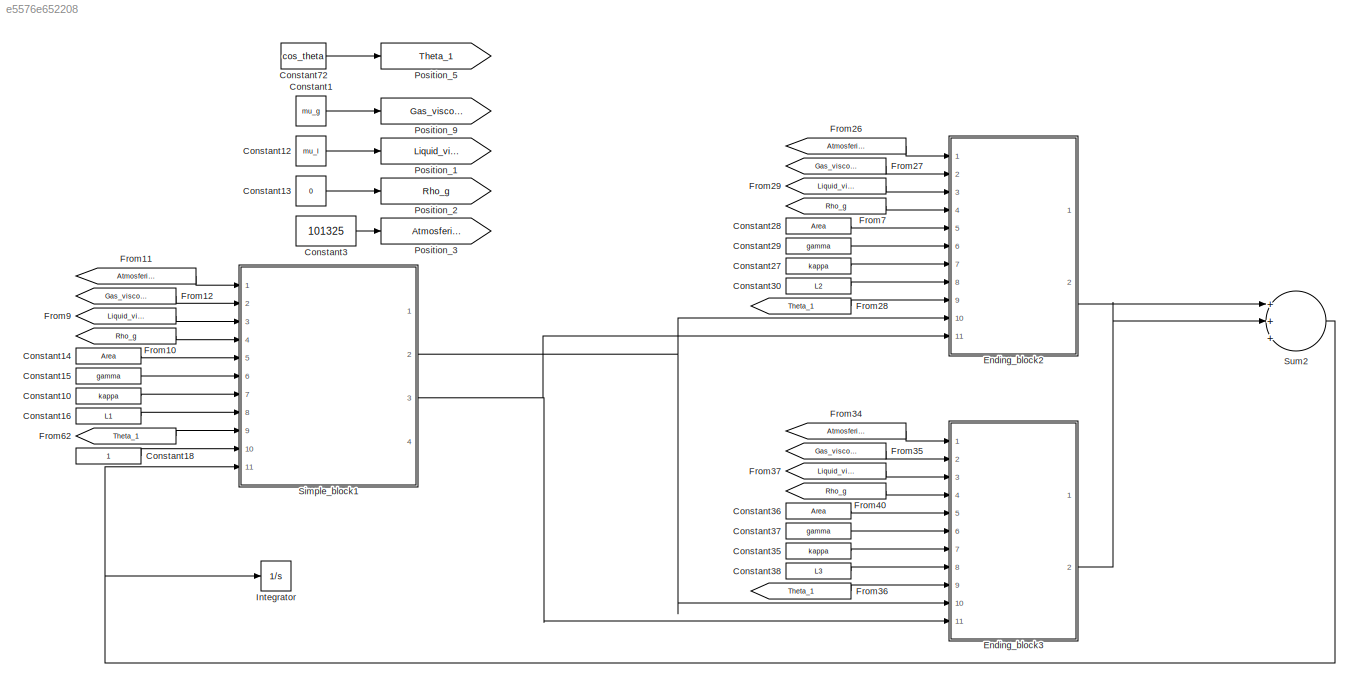
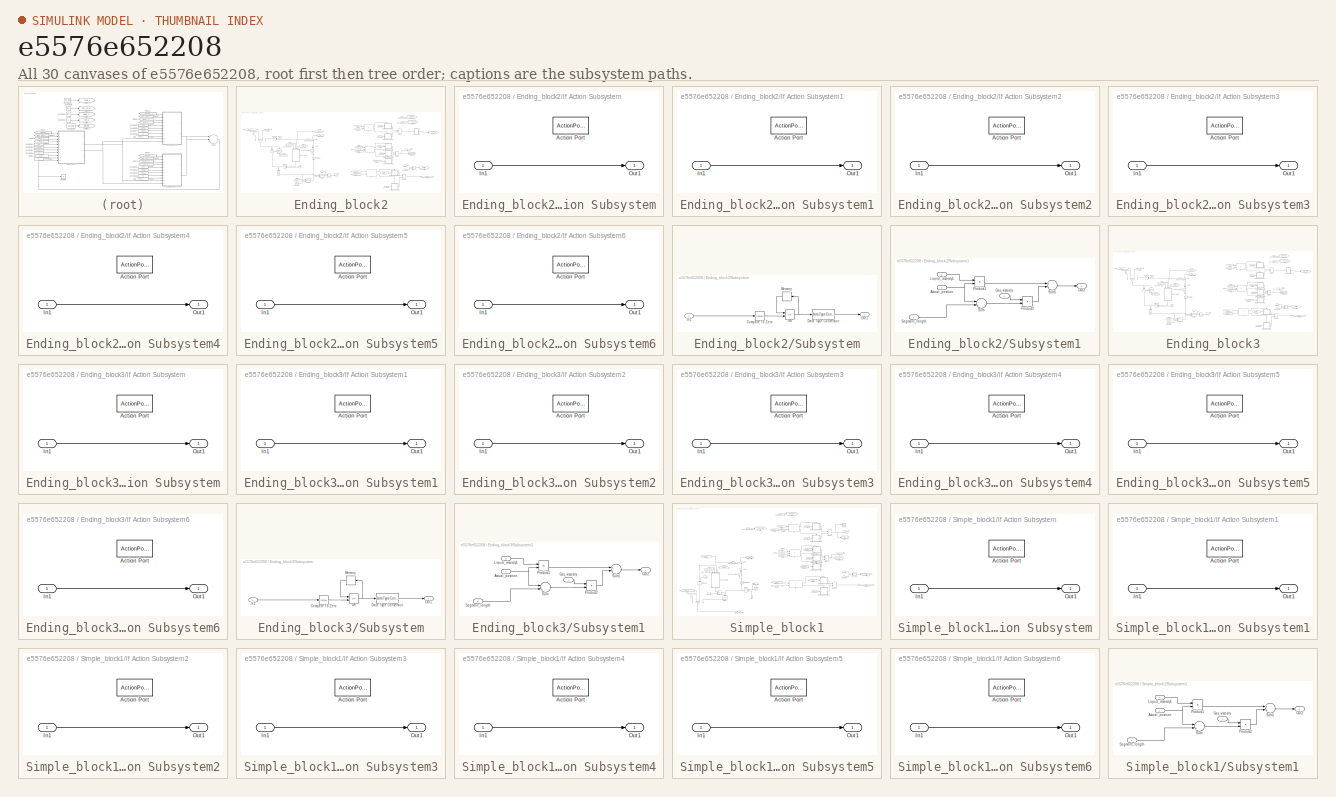
[diagram: thumbnail index - all 30 canvases of the model, root first then tree order]
MODEL slx_e5576e652208
KIND model
CONFIG AbsTol = auto
CONFIG EnableMultiTasking = off
CONFIG FixedStep = auto
CONFIG MaxStep = 0.005
CONFIG MinStep = auto
CONFIG RelTol = 1e-3
CONFIG SampleTimeConstraint = Unconstrained
CONFIG Solver = VariableStepAuto
CONFIG SolverName = VariableStepAuto
CONFIG StartTime = 0.0
CONFIG StopTime = 35
BLOCK [Constant] Constant1
  Value = mu_g
BLOCK [Constant] Constant10
  Value = kappa
BLOCK [Constant] Constant12
  Value = mu_l
BLOCK [Constant] Constant13
  Value = 0
BLOCK [Constant] Constant14
  Value = Area
BLOCK [Constant] Constant15
  Value = gamma
BLOCK [Constant] Constant16
  Value = L1
BLOCK [Constant] Constant18
BLOCK [Constant] Constant27
  Value = kappa
BLOCK [Constant] Constant28
  Value = Area
BLOCK [Constant] Constant29
  Value = gamma
BLOCK [Constant] Constant3
  Value = 101325
BLOCK [Constant] Constant30
  Value = L2
  VectorParams1D = off
BLOCK [Constant] Constant35
  Value = kappa
BLOCK [Constant] Constant36
  Value = Area
BLOCK [Constant] Constant37
  Value = gamma
BLOCK [Constant] Constant38
  Value = L3
BLOCK [Constant] Constant72
  Value = cos_theta
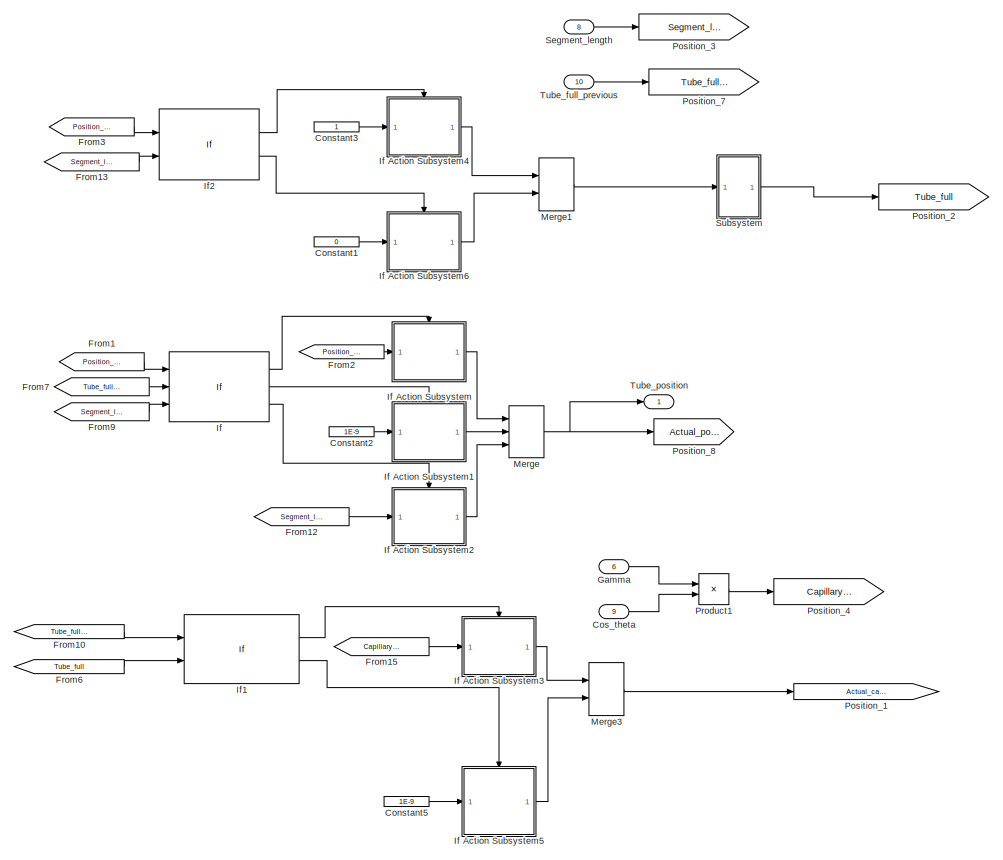
[diagram: Ending_block2 - part 1/2, right side, full height]
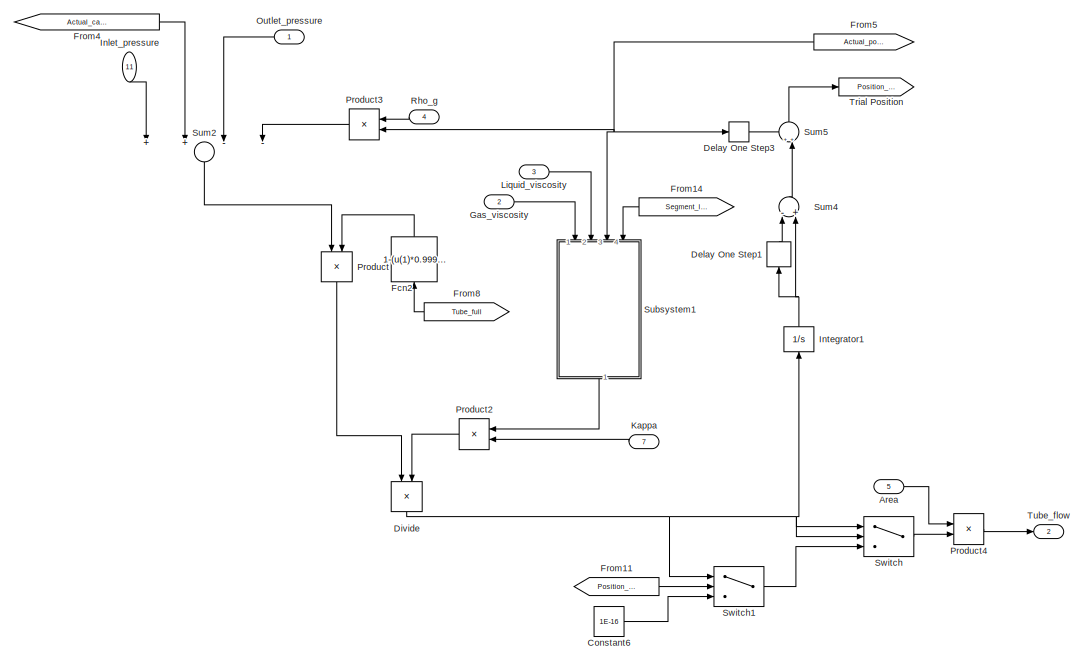
[diagram: Ending_block2 - part 2/2, left side, full height]
BLOCK [SubSystem] Ending_block2
  Ports = [11, 2]
  RequestExecContextInheritance = off
BLOCK [Inport] Ending_block2/Area
  IconDisplay = Port number
  Port = 5
BLOCK [Constant] Ending_block2/Constant1
  Value = 0
BLOCK [Constant] Ending_block2/Constant2
  Value = 1E-9
BLOCK [Constant] Ending_block2/Constant3
BLOCK [Constant] Ending_block2/Constant5
  Value = 1E-9
BLOCK [Constant] Ending_block2/Constant6
  Value = 1E-16
BLOCK [Inport] Ending_block2/Cos_theta
  IconDisplay = Port number
  Port = 9
BLOCK [Delay] Ending_block2/Delay One Step1
  DelayLength = 1
  InputPortMap = u0
  Ports = [1, 1]
BLOCK [Delay] Ending_block2/Delay One Step3
  DelayLength = 1
  InputPortMap = u0
  Ports = [1, 1]
BLOCK [Product] Ending_block2/Divide
  InputSameDT = off
  Inputs = */
  OutDataTypeStr = Inherit: Inherit via internal rule
  Ports = [2, 1]
  RndMeth = Floor
  SaturateOnIntegerOverflow = off
BLOCK [Fcn] Ending_block2/Fcn2
  Expr = 1-(u(1)*0.99999)
BLOCK [From] Ending_block2/From1
  GotoTag = Position_trial
BLOCK [From] Ending_block2/From10
  GotoTag = Tube_full_previous
BLOCK [From] Ending_block2/From11
  GotoTag = Position_trial
BLOCK [From] Ending_block2/From12
  GotoTag = Segment_length
BLOCK [From] Ending_block2/From13
  GotoTag = Segment_length
BLOCK [From] Ending_block2/From14
  GotoTag = Segment_length
BLOCK [From] Ending_block2/From15
  GotoTag = Capillary_pressure
BLOCK [From] Ending_block2/From2
  GotoTag = Position_trial
BLOCK [From] Ending_block2/From3
  GotoTag = Position_trial
BLOCK [From] Ending_block2/From4
  GotoTag = Actual_capillary_pressure
BLOCK [From] Ending_block2/From5
  GotoTag = Actual_position
BLOCK [From] Ending_block2/From6
  GotoTag = Tube_full
BLOCK [From] Ending_block2/From7
  GotoTag = Tube_full_previous
BLOCK [From] Ending_block2/From8
  GotoTag = Tube_full
BLOCK [From] Ending_block2/From9
  GotoTag = Segment_length
BLOCK [Inport] Ending_block2/Gamma
  IconDisplay = Port number
  Port = 6
BLOCK [Inport] Ending_block2/Gas_viscosity
  IconDisplay = Port number
  Port = 2
BLOCK [If] Ending_block2/If
  ElseIfExpressions = (u1 < 0),(u1 > u3)
  IfExpression = (u1 >= 0) & (u1 <= u3) & (u2==1)
  NumInputs = 3
  Ports = [3, 3]
  ShowElse = off
BLOCK [SubSystem] Ending_block2/If Action Subsystem
  Ports = [1, 1, 0, 0, 0, 0, 0, 1]
  RequestExecContextInheritance = off
  TreatAsAtomicUnit = on
BLOCK [ActionPort] Ending_block2/If Action Subsystem/Action Port
  ActionType = then
BLOCK [Inport] Ending_block2/If Action Subsystem/In1
  IconDisplay = Port number
BLOCK [Outport] Ending_block2/If Action Subsystem/Out1
  IconDisplay = Port number
BLOCK [SubSystem] Ending_block2/If Action Subsystem1
  Ports = [1, 1, 0, 0, 0, 0, 0, 1]
  RequestExecContextInheritance = off
  TreatAsAtomicUnit = on
BLOCK [ActionPort] Ending_block2/If Action Subsystem1/Action Port
  ActionType = elseif
BLOCK [Inport] Ending_block2/If Action Subsystem1/In1
  IconDisplay = Port number
BLOCK [Outport] Ending_block2/If Action Subsystem1/Out1
  IconDisplay = Port number
BLOCK [SubSystem] Ending_block2/If Action Subsystem2
  Ports = [1, 1, 0, 0, 0, 0, 0, 1]
  RequestExecContextInheritance = off
  TreatAsAtomicUnit = on
BLOCK [ActionPort] Ending_block2/If Action Subsystem2/Action Port
  ActionType = elseif
BLOCK [Inport] Ending_block2/If Action Subsystem2/In1
  IconDisplay = Port number
BLOCK [Outport] Ending_block2/If Action Subsystem2/Out1
  IconDisplay = Port number
BLOCK [SubSystem] Ending_block2/If Action Subsystem3
  Ports = [1, 1, 0, 0, 0, 0, 0, 1]
  RequestExecContextInheritance = off
  TreatAsAtomicUnit = on
BLOCK [ActionPort] Ending_block2/If Action Subsystem3/Action Port
  ActionType = then
BLOCK [Inport] Ending_block2/If Action Subsystem3/In1
  IconDisplay = Port number
BLOCK [Outport] Ending_block2/If Action Subsystem3/Out1
  IconDisplay = Port number
BLOCK [SubSystem] Ending_block2/If Action Subsystem4
  Ports = [1, 1, 0, 0, 0, 0, 0, 1]
  RequestExecContextInheritance = off
  TreatAsAtomicUnit = on
BLOCK [ActionPort] Ending_block2/If Action Subsystem4/Action Port
  ActionType = then
BLOCK [Inport] Ending_block2/If Action Subsystem4/In1
  IconDisplay = Port number
BLOCK [Outport] Ending_block2/If Action Subsystem4/Out1
  IconDisplay = Port number
BLOCK [SubSystem] Ending_block2/If Action Subsystem5
  Ports = [1, 1, 0, 0, 0, 0, 0, 1]
  RequestExecContextInheritance = off
  TreatAsAtomicUnit = on
BLOCK [ActionPort] Ending_block2/If Action Subsystem5/Action Port
  ActionType = else
BLOCK [Inport] Ending_block2/If Action Subsystem5/In1
  IconDisplay = Port number
BLOCK [Outport] Ending_block2/If Action Subsystem5/Out1
  IconDisplay = Port number
BLOCK [SubSystem] Ending_block2/If Action Subsystem6
  Ports = [1, 1, 0, 0, 0, 0, 0, 1]
  RequestExecContextInheritance = off
  TreatAsAtomicUnit = on
BLOCK [ActionPort] Ending_block2/If Action Subsystem6/Action Port
  ActionType = else
BLOCK [Inport] Ending_block2/If Action Subsystem6/In1
  IconDisplay = Port number
BLOCK [Outport] Ending_block2/If Action Subsystem6/Out1
  IconDisplay = Port number
BLOCK [If] Ending_block2/If1
  IfExpression = (u1==1)&(u2==0)
  NumInputs = 2
  Ports = [2, 2]
BLOCK [If] Ending_block2/If2
  IfExpression = (u1 >= u2)
  NumInputs = 2
  Ports = [2, 2]
BLOCK [Inport] Ending_block2/Inlet_pressure
  IconDisplay = Port number
  Port = 11
BLOCK [Integrator] Ending_block2/Integrator1
  Ports = [1, 1]
BLOCK [Inport] Ending_block2/Kappa
  IconDisplay = Port number
  Port = 7
BLOCK [Inport] Ending_block2/Liquid_viscosity
  IconDisplay = Port number
  Port = 3
BLOCK [Merge] Ending_block2/Merge
  Inputs = 3
  Ports = [3, 1]
BLOCK [Merge] Ending_block2/Merge1
  Ports = [2, 1]
BLOCK [Merge] Ending_block2/Merge3
  Ports = [2, 1]
BLOCK [Inport] Ending_block2/Outlet_pressure
  IconDisplay = Port number
BLOCK [Goto] Ending_block2/Position_1
  GotoTag = Actual_capillary_pressure
BLOCK [Goto] Ending_block2/Position_2
  GotoTag = Tube_full
BLOCK [Goto] Ending_block2/Position_3
  GotoTag = Segment_length
BLOCK [Goto] Ending_block2/Position_4
  GotoTag = Capillary_pressure
BLOCK [Goto] Ending_block2/Position_7
  GotoTag = Tube_full_previous
BLOCK [Goto] Ending_block2/Position_8
  GotoTag = Actual_position
BLOCK [Product] Ending_block2/Product
  InputSameDT = off
  OutDataTypeStr = Inherit: Inherit via internal rule
  Ports = [2, 1]
  RndMeth = Floor
  SaturateOnIntegerOverflow = off
BLOCK [Product] Ending_block2/Product1
  InputSameDT = off
  OutDataTypeStr = Inherit: Inherit via internal rule
  Ports = [2, 1]
  RndMeth = Floor
  SaturateOnIntegerOverflow = off
BLOCK [Product] Ending_block2/Product2
  InputSameDT = off
  OutDataTypeStr = Inherit: Inherit via internal rule
  Ports = [2, 1]
  RndMeth = Floor
  SaturateOnIntegerOverflow = off
BLOCK [Product] Ending_block2/Product3
  InputSameDT = off
  OutDataTypeStr = Inherit: Inherit via internal rule
  Ports = [2, 1]
  RndMeth = Floor
  SaturateOnIntegerOverflow = off
BLOCK [Product] Ending_block2/Product4
  InputSameDT = off
  OutDataTypeStr = Inherit: Inherit via internal rule
  Ports = [2, 1]
  RndMeth = Floor
  SaturateOnIntegerOverflow = off
BLOCK [Inport] Ending_block2/Rho_g
  IconDisplay = Port number
  Port = 4
BLOCK [Inport] Ending_block2/Segment_length
  IconDisplay = Port number
  Port = 8
BLOCK [SubSystem] Ending_block2/Subsystem
  Ports = [1, 1]
  RequestExecContextInheritance = off
BLOCK [Reference] Ending_block2/Subsystem/Compare To Zero  REF=simulink/Logic and Bit
Operations/Compare
To Zero
  Ports = [1, 1]
  SourceBlock = simulink/Logic and Bit\nOperations/Compare\nTo Zero
  SourceProductBaseCode = SL
  SourceProductName = Simulink
  SourceType = Compare To Zero
BLOCK [DataTypeConversion] Ending_block2/Subsystem/Data Type Conversion
  RndMeth = Floor
  SaturateOnIntegerOverflow = off
BLOCK [Inport] Ending_block2/Subsystem/In1
  IconDisplay = Port number
BLOCK [Memory] Ending_block2/Subsystem/Memory
BLOCK [Logic] Ending_block2/Subsystem/OR
  AllPortsSameDT = off
  IconShape = distinctive
  Operator = OR
  OutDataTypeStr = boolean
  Ports = [2, 1]
BLOCK [Outport] Ending_block2/Subsystem/Out1
  IconDisplay = Port number
BLOCK [SubSystem] Ending_block2/Subsystem1
  Ports = [4, 1]
  RequestExecContextInheritance = off
BLOCK [Inport] Ending_block2/Subsystem1/Actual_position
  IconDisplay = Port number
  Port = 3
BLOCK [Inport] Ending_block2/Subsystem1/Gas_viscosity
  IconDisplay = Port number
BLOCK [Inport] Ending_block2/Subsystem1/Liquid_viscosity1
  IconDisplay = Port number
  Port = 2
BLOCK [Outport] Ending_block2/Subsystem1/Out2
  IconDisplay = Port number
BLOCK [Product] Ending_block2/Subsystem1/Product1
  InputSameDT = off
  OutDataTypeStr = Inherit: Inherit via internal rule
  Ports = [2, 1]
  RndMeth = Floor
  SaturateOnIntegerOverflow = off
BLOCK [Product] Ending_block2/Subsystem1/Product2
  InputSameDT = off
  OutDataTypeStr = Inherit: Inherit via internal rule
  Ports = [2, 1]
  RndMeth = Floor
  SaturateOnIntegerOverflow = off
BLOCK [Inport] Ending_block2/Subsystem1/Segment_length
  IconDisplay = Port number
  Port = 4
BLOCK [Sum] Ending_block2/Subsystem1/Sum
  InputSameDT = off
  Inputs = -+
  OutDataTypeStr = Inherit: Inherit via internal rule
  Ports = [2, 1]
  SaturateOnIntegerOverflow = off
BLOCK [Sum] Ending_block2/Subsystem1/Sum1
  InputSameDT = off
  OutDataTypeStr = Inherit: Inherit via internal rule
  Ports = [2, 1]
  SaturateOnIntegerOverflow = off
BLOCK [Sum] Ending_block2/Sum2
  InputSameDT = off
  Inputs = ++--
  OutDataTypeStr = Inherit: Inherit via internal rule
  Ports = [4, 1]
  SaturateOnIntegerOverflow = off
BLOCK [Sum] Ending_block2/Sum4
  InputSameDT = off
  Inputs = -+
  OutDataTypeStr = Inherit: Inherit via internal rule
  Ports = [2, 1]
  SaturateOnIntegerOverflow = off
BLOCK [Sum] Ending_block2/Sum5
  IconShape = round
  InputSameDT = off
  Inputs = ++|
  OutDataTypeStr = Inherit: Inherit via internal rule
  Ports = [2, 1]
  SaturateOnIntegerOverflow = off
BLOCK [Switch] Ending_block2/Switch
  InputSameDT = off
  SaturateOnIntegerOverflow = off
BLOCK [Switch] Ending_block2/Switch1
  Criteria = u2 > Threshold
  InputSameDT = off
  SaturateOnIntegerOverflow = off
  Threshold = 0.01
BLOCK [Goto] Ending_block2/Trial Position
  GotoTag = Position_trial
BLOCK [Outport] Ending_block2/Tube_flow
  IconDisplay = Signal name
  Port = 2
BLOCK [Inport] Ending_block2/Tube_full_previous
  IconDisplay = Port number
  Port = 10
BLOCK [Outport] Ending_block2/Tube_position
  IconDisplay = Signal name
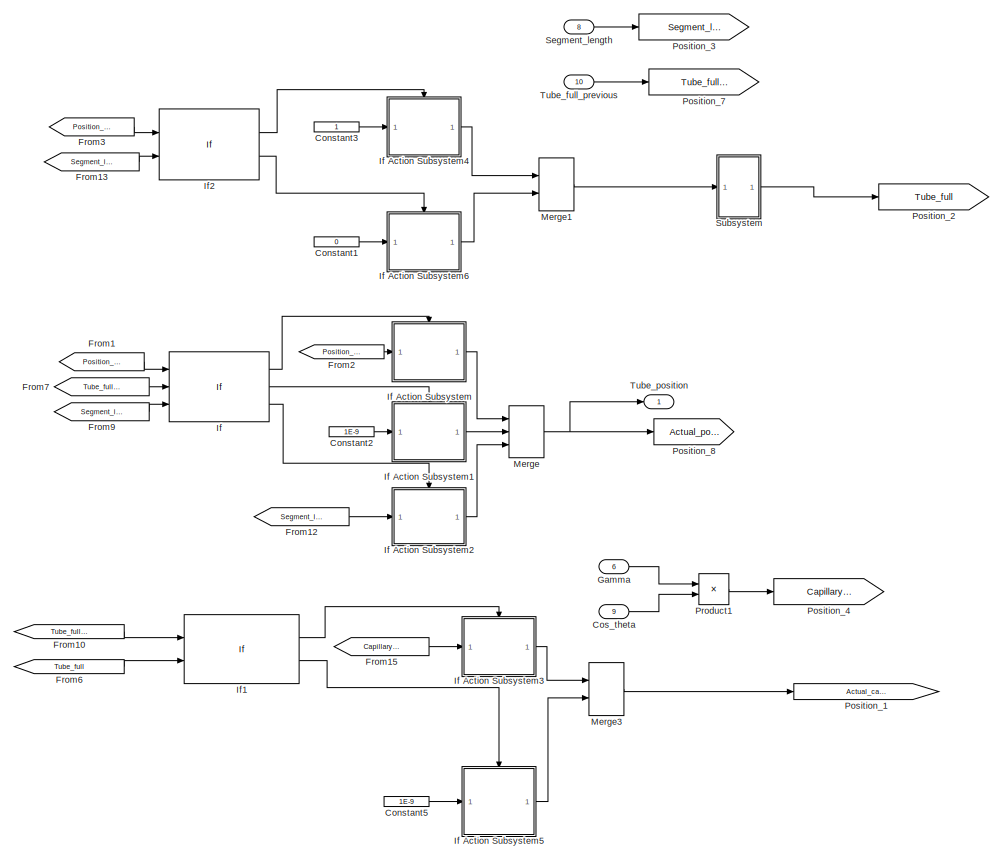
[diagram: Ending_block3 - part 1/2, right side, full height]
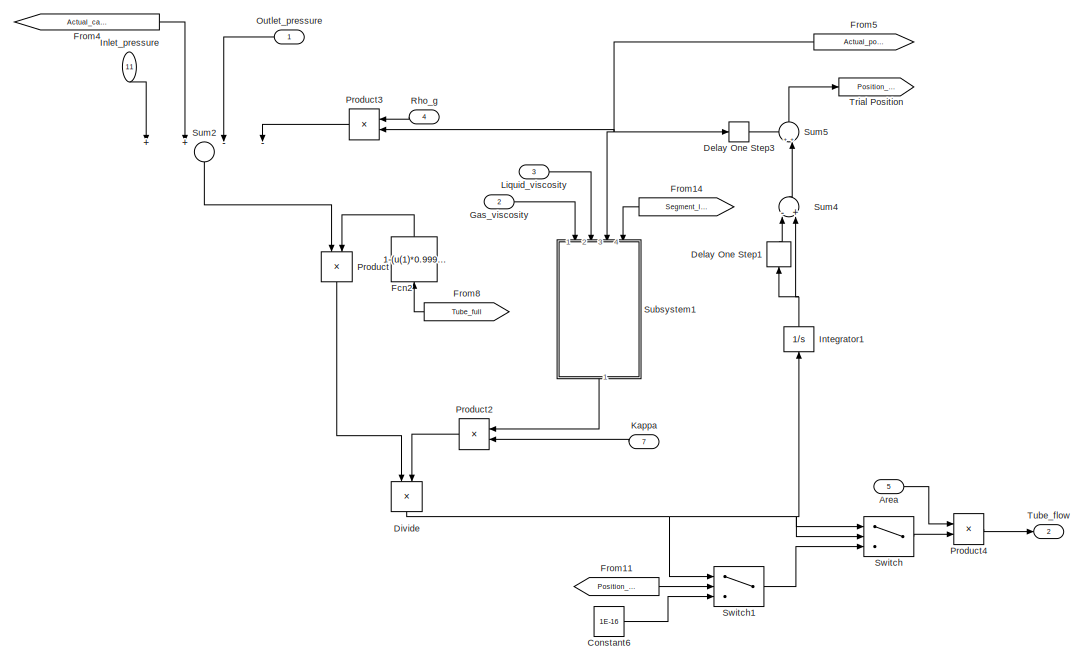
[diagram: Ending_block3 - part 2/2, left side, full height]
BLOCK [SubSystem] Ending_block3
  Ports = [11, 2]
  RequestExecContextInheritance = off
BLOCK [Inport] Ending_block3/Area
  IconDisplay = Port number
  Port = 5
BLOCK [Constant] Ending_block3/Constant1
  Value = 0
BLOCK [Constant] Ending_block3/Constant2
  Value = 1E-9
BLOCK [Constant] Ending_block3/Constant3
BLOCK [Constant] Ending_block3/Constant5
  Value = 1E-9
BLOCK [Constant] Ending_block3/Constant6
  Value = 1E-16
BLOCK [Inport] Ending_block3/Cos_theta
  IconDisplay = Port number
  Port = 9
BLOCK [Delay] Ending_block3/Delay One Step1
  DelayLength = 1
  InputPortMap = u0
  Ports = [1, 1]
BLOCK [Delay] Ending_block3/Delay One Step3
  DelayLength = 1
  InputPortMap = u0
  Ports = [1, 1]
BLOCK [Product] Ending_block3/Divide
  InputSameDT = off
  Inputs = */
  OutDataTypeStr = Inherit: Inherit via internal rule
  Ports = [2, 1]
  RndMeth = Floor
  SaturateOnIntegerOverflow = off
BLOCK [Fcn] Ending_block3/Fcn2
  Expr = 1-(u(1)*0.99999)
BLOCK [From] Ending_block3/From1
  GotoTag = Position_trial
BLOCK [From] Ending_block3/From10
  GotoTag = Tube_full_previous
BLOCK [From] Ending_block3/From11
  GotoTag = Position_trial
BLOCK [From] Ending_block3/From12
  GotoTag = Segment_length
BLOCK [From] Ending_block3/From13
  GotoTag = Segment_length
BLOCK [From] Ending_block3/From14
  GotoTag = Segment_length
BLOCK [From] Ending_block3/From15
  GotoTag = Capillary_pressure
BLOCK [From] Ending_block3/From2
  GotoTag = Position_trial
BLOCK [From] Ending_block3/From3
  GotoTag = Position_trial
BLOCK [From] Ending_block3/From4
  GotoTag = Actual_capillary_pressure
BLOCK [From] Ending_block3/From5
  GotoTag = Actual_position
BLOCK [From] Ending_block3/From6
  GotoTag = Tube_full
BLOCK [From] Ending_block3/From7
  GotoTag = Tube_full_previous
BLOCK [From] Ending_block3/From8
  GotoTag = Tube_full
BLOCK [From] Ending_block3/From9
  GotoTag = Segment_length
BLOCK [Inport] Ending_block3/Gamma
  IconDisplay = Port number
  Port = 6
BLOCK [Inport] Ending_block3/Gas_viscosity
  IconDisplay = Port number
  Port = 2
BLOCK [If] Ending_block3/If
  ElseIfExpressions = (u1 < 0),(u1 > u3)
  IfExpression = (u1 >= 0) & (u1 <= u3) & (u2==1)
  NumInputs = 3
  Ports = [3, 3]
  ShowElse = off
BLOCK [SubSystem] Ending_block3/If Action Subsystem
  Ports = [1, 1, 0, 0, 0, 0, 0, 1]
  RequestExecContextInheritance = off
  TreatAsAtomicUnit = on
BLOCK [ActionPort] Ending_block3/If Action Subsystem/Action Port
  ActionType = then
BLOCK [Inport] Ending_block3/If Action Subsystem/In1
  IconDisplay = Port number
BLOCK [Outport] Ending_block3/If Action Subsystem/Out1
  IconDisplay = Port number
BLOCK [SubSystem] Ending_block3/If Action Subsystem1
  Ports = [1, 1, 0, 0, 0, 0, 0, 1]
  RequestExecContextInheritance = off
  TreatAsAtomicUnit = on
BLOCK [ActionPort] Ending_block3/If Action Subsystem1/Action Port
  ActionType = elseif
BLOCK [Inport] Ending_block3/If Action Subsystem1/In1
  IconDisplay = Port number
BLOCK [Outport] Ending_block3/If Action Subsystem1/Out1
  IconDisplay = Port number
BLOCK [SubSystem] Ending_block3/If Action Subsystem2
  Ports = [1, 1, 0, 0, 0, 0, 0, 1]
  RequestExecContextInheritance = off
  TreatAsAtomicUnit = on
BLOCK [ActionPort] Ending_block3/If Action Subsystem2/Action Port
  ActionType = elseif
BLOCK [Inport] Ending_block3/If Action Subsystem2/In1
  IconDisplay = Port number
BLOCK [Outport] Ending_block3/If Action Subsystem2/Out1
  IconDisplay = Port number
BLOCK [SubSystem] Ending_block3/If Action Subsystem3
  Ports = [1, 1, 0, 0, 0, 0, 0, 1]
  RequestExecContextInheritance = off
  TreatAsAtomicUnit = on
BLOCK [ActionPort] Ending_block3/If Action Subsystem3/Action Port
  ActionType = then
BLOCK [Inport] Ending_block3/If Action Subsystem3/In1
  IconDisplay = Port number
BLOCK [Outport] Ending_block3/If Action Subsystem3/Out1
  IconDisplay = Port number
BLOCK [SubSystem] Ending_block3/If Action Subsystem4
  Ports = [1, 1, 0, 0, 0, 0, 0, 1]
  RequestExecContextInheritance = off
  TreatAsAtomicUnit = on
BLOCK [ActionPort] Ending_block3/If Action Subsystem4/Action Port
  ActionType = then
BLOCK [Inport] Ending_block3/If Action Subsystem4/In1
  IconDisplay = Port number
BLOCK [Outport] Ending_block3/If Action Subsystem4/Out1
  IconDisplay = Port number
BLOCK [SubSystem] Ending_block3/If Action Subsystem5
  Ports = [1, 1, 0, 0, 0, 0, 0, 1]
  RequestExecContextInheritance = off
  TreatAsAtomicUnit = on
BLOCK [ActionPort] Ending_block3/If Action Subsystem5/Action Port
  ActionType = else
BLOCK [Inport] Ending_block3/If Action Subsystem5/In1
  IconDisplay = Port number
BLOCK [Outport] Ending_block3/If Action Subsystem5/Out1
  IconDisplay = Port number
BLOCK [SubSystem] Ending_block3/If Action Subsystem6
  Ports = [1, 1, 0, 0, 0, 0, 0, 1]
  RequestExecContextInheritance = off
  TreatAsAtomicUnit = on
BLOCK [ActionPort] Ending_block3/If Action Subsystem6/Action Port
  ActionType = else
BLOCK [Inport] Ending_block3/If Action Subsystem6/In1
  IconDisplay = Port number
BLOCK [Outport] Ending_block3/If Action Subsystem6/Out1
  IconDisplay = Port number
BLOCK [If] Ending_block3/If1
  IfExpression = (u1==1)&(u2==0)
  NumInputs = 2
  Ports = [2, 2]
BLOCK [If] Ending_block3/If2
  IfExpression = (u1 >= u2)
  NumInputs = 2
  Ports = [2, 2]
BLOCK [Inport] Ending_block3/Inlet_pressure
  IconDisplay = Port number
  Port = 11
BLOCK [Integrator] Ending_block3/Integrator1
  Ports = [1, 1]
BLOCK [Inport] Ending_block3/Kappa
  IconDisplay = Port number
  Port = 7
BLOCK [Inport] Ending_block3/Liquid_viscosity
  IconDisplay = Port number
  Port = 3
BLOCK [Merge] Ending_block3/Merge
  Inputs = 3
  Ports = [3, 1]
BLOCK [Merge] Ending_block3/Merge1
  Ports = [2, 1]
BLOCK [Merge] Ending_block3/Merge3
  Ports = [2, 1]
BLOCK [Inport] Ending_block3/Outlet_pressure
  IconDisplay = Port number
BLOCK [Goto] Ending_block3/Position_1
  GotoTag = Actual_capillary_pressure
BLOCK [Goto] Ending_block3/Position_2
  GotoTag = Tube_full
BLOCK [Goto] Ending_block3/Position_3
  GotoTag = Segment_length
BLOCK [Goto] Ending_block3/Position_4
  GotoTag = Capillary_pressure
BLOCK [Goto] Ending_block3/Position_7
  GotoTag = Tube_full_previous
BLOCK [Goto] Ending_block3/Position_8
  GotoTag = Actual_position
BLOCK [Product] Ending_block3/Product
  InputSameDT = off
  OutDataTypeStr = Inherit: Inherit via internal rule
  Ports = [2, 1]
  RndMeth = Floor
  SaturateOnIntegerOverflow = off
BLOCK [Product] Ending_block3/Product1
  InputSameDT = off
  OutDataTypeStr = Inherit: Inherit via internal rule
  Ports = [2, 1]
  RndMeth = Floor
  SaturateOnIntegerOverflow = off
BLOCK [Product] Ending_block3/Product2
  InputSameDT = off
  OutDataTypeStr = Inherit: Inherit via internal rule
  Ports = [2, 1]
  RndMeth = Floor
  SaturateOnIntegerOverflow = off
BLOCK [Product] Ending_block3/Product3
  InputSameDT = off
  OutDataTypeStr = Inherit: Inherit via internal rule
  Ports = [2, 1]
  RndMeth = Floor
  SaturateOnIntegerOverflow = off
BLOCK [Product] Ending_block3/Product4
  InputSameDT = off
  OutDataTypeStr = Inherit: Inherit via internal rule
  Ports = [2, 1]
  RndMeth = Floor
  SaturateOnIntegerOverflow = off
BLOCK [Inport] Ending_block3/Rho_g
  IconDisplay = Port number
  Port = 4
BLOCK [Inport] Ending_block3/Segment_length
  IconDisplay = Port number
  Port = 8
BLOCK [SubSystem] Ending_block3/Subsystem
  Ports = [1, 1]
  RequestExecContextInheritance = off
BLOCK [Reference] Ending_block3/Subsystem/Compare To Zero  REF=simulink/Logic and Bit
Operations/Compare
To Zero
  Ports = [1, 1]
  SourceBlock = simulink/Logic and Bit\nOperations/Compare\nTo Zero
  SourceProductBaseCode = SL
  SourceProductName = Simulink
  SourceType = Compare To Zero
BLOCK [DataTypeConversion] Ending_block3/Subsystem/Data Type Conversion
  RndMeth = Floor
  SaturateOnIntegerOverflow = off
BLOCK [Inport] Ending_block3/Subsystem/In1
  IconDisplay = Port number
BLOCK [Memory] Ending_block3/Subsystem/Memory
BLOCK [Logic] Ending_block3/Subsystem/OR
  AllPortsSameDT = off
  IconShape = distinctive
  Operator = OR
  OutDataTypeStr = boolean
  Ports = [2, 1]
BLOCK [Outport] Ending_block3/Subsystem/Out1
  IconDisplay = Port number
BLOCK [SubSystem] Ending_block3/Subsystem1
  Ports = [4, 1]
  RequestExecContextInheritance = off
BLOCK [Inport] Ending_block3/Subsystem1/Actual_position
  IconDisplay = Port number
  Port = 3
BLOCK [Inport] Ending_block3/Subsystem1/Gas_viscosity
  IconDisplay = Port number
BLOCK [Inport] Ending_block3/Subsystem1/Liquid_viscosity1
  IconDisplay = Port number
  Port = 2
BLOCK [Outport] Ending_block3/Subsystem1/Out2
  IconDisplay = Port number
BLOCK [Product] Ending_block3/Subsystem1/Product1
  InputSameDT = off
  OutDataTypeStr = Inherit: Inherit via internal rule
  Ports = [2, 1]
  RndMeth = Floor
  SaturateOnIntegerOverflow = off
BLOCK [Product] Ending_block3/Subsystem1/Product2
  InputSameDT = off
  OutDataTypeStr = Inherit: Inherit via internal rule
  Ports = [2, 1]
  RndMeth = Floor
  SaturateOnIntegerOverflow = off
BLOCK [Inport] Ending_block3/Subsystem1/Segment_length
  IconDisplay = Port number
  Port = 4
BLOCK [Sum] Ending_block3/Subsystem1/Sum
  InputSameDT = off
  Inputs = -+
  OutDataTypeStr = Inherit: Inherit via internal rule
  Ports = [2, 1]
  SaturateOnIntegerOverflow = off
BLOCK [Sum] Ending_block3/Subsystem1/Sum1
  InputSameDT = off
  OutDataTypeStr = Inherit: Inherit via internal rule
  Ports = [2, 1]
  SaturateOnIntegerOverflow = off
BLOCK [Sum] Ending_block3/Sum2
  InputSameDT = off
  Inputs = ++--
  OutDataTypeStr = Inherit: Inherit via internal rule
  Ports = [4, 1]
  SaturateOnIntegerOverflow = off
BLOCK [Sum] Ending_block3/Sum4
  InputSameDT = off
  Inputs = -+
  OutDataTypeStr = Inherit: Inherit via internal rule
  Ports = [2, 1]
  SaturateOnIntegerOverflow = off
BLOCK [Sum] Ending_block3/Sum5
  IconShape = round
  InputSameDT = off
  Inputs = ++|
  OutDataTypeStr = Inherit: Inherit via internal rule
  Ports = [2, 1]
  SaturateOnIntegerOverflow = off
BLOCK [Switch] Ending_block3/Switch
  InputSameDT = off
  SaturateOnIntegerOverflow = off
BLOCK [Switch] Ending_block3/Switch1
  Criteria = u2 > Threshold
  InputSameDT = off
  SaturateOnIntegerOverflow = off
  Threshold = 0.01
BLOCK [Goto] Ending_block3/Trial Position
  GotoTag = Position_trial
BLOCK [Outport] Ending_block3/Tube_flow
  IconDisplay = Signal name
  Port = 2
BLOCK [Inport] Ending_block3/Tube_full_previous
  IconDisplay = Port number
  Port = 10
BLOCK [Outport] Ending_block3/Tube_position
  IconDisplay = Signal name
BLOCK [From] From10
  GotoTag = Rho_g
BLOCK [From] From11
  GotoTag = Atmosferic_pressure
BLOCK [From] From12
  GotoTag = Gas_viscosity
BLOCK [From] From26
  GotoTag = Atmosferic_pressure
BLOCK [From] From27
  GotoTag = Gas_viscosity
BLOCK [From] From28
  GotoTag = Theta_1
BLOCK [From] From29
  GotoTag = Liquid_viscosity
BLOCK [From] From34
  GotoTag = Atmosferic_pressure
BLOCK [From] From35
  GotoTag = Gas_viscosity
BLOCK [From] From36
  GotoTag = Theta_1
BLOCK [From] From37
  GotoTag = Liquid_viscosity
BLOCK [From] From40
  GotoTag = Rho_g
BLOCK [From] From62
  GotoTag = Theta_1
BLOCK [From] From7
  GotoTag = Rho_g
BLOCK [From] From9
  GotoTag = Liquid_viscosity
BLOCK [Integrator] Integrator
  Ports = [1, 1]
BLOCK [Goto] Position_1
  GotoTag = Liquid_viscosity
BLOCK [Goto] Position_2
  GotoTag = Rho_g
BLOCK [Goto] Position_3
  GotoTag = Atmosferic_pressure
BLOCK [Goto] Position_5
  GotoTag = Theta_1
BLOCK [Goto] Position_9
  GotoTag = Gas_viscosity
BLOCK [SubSystem] Simple_block1
  Ports = [11, 4]
  RequestExecContextInheritance = off
BLOCK [Inport] Simple_block1/Area
  IconDisplay = Port number
  Port = 5
BLOCK [Constant] Simple_block1/Constant1
  Value = 0
BLOCK [Constant] Simple_block1/Constant2
  Value = 1E-9
BLOCK [Constant] Simple_block1/Constant3
BLOCK [Constant] Simple_block1/Constant5
  Value = 1E-9
BLOCK [Inport] Simple_block1/Cos_theta
  IconDisplay = Port number
  Port = 9
BLOCK [Delay] Simple_block1/Delay One Step1
  DelayLength = 1
  InputPortMap = u0
  Ports = [1, 1]
BLOCK [Delay] Simple_block1/Delay One Step3
  DelayLength = 1
  InputPortMap = u0
  Ports = [1, 1]
BLOCK [Product] Simple_block1/DeltaP1
  InputSameDT = off
  Inputs = **
  OutDataTypeStr = Inherit: Inherit via internal rule
  Ports = [2, 1]
  RndMeth = Floor
  SaturateOnIntegerOverflow = off
BLOCK [Product] Simple_block1/Divide
  InputSameDT = off
  Inputs = */
  OutDataTypeStr = Inherit: Inherit via internal rule
  Ports = [2, 1]
  RndMeth = Floor
  SaturateOnIntegerOverflow = off
BLOCK [From] Simple_block1/From1
  GotoTag = Position_trial
BLOCK [From] Simple_block1/From10
  GotoTag = Tube_full_previous
BLOCK [From] Simple_block1/From11
  GotoTag = Segment_length
BLOCK [From] Simple_block1/From12
  GotoTag = Capillary_pressure
BLOCK [From] Simple_block1/From14
  GotoTag = Segment_length
BLOCK [From] Simple_block1/From2
  GotoTag = Position_trial
BLOCK [From] Simple_block1/From3
  GotoTag = Position_trial
BLOCK [From] Simple_block1/From4
  GotoTag = Actual_capillary_pressure
BLOCK [From] Simple_block1/From5
  GotoTag = Actual_position
BLOCK [From] Simple_block1/From6
  GotoTag = Tube_full
BLOCK [From] Simple_block1/From7
  GotoTag = Tube_full_previous
BLOCK [From] Simple_block1/From8
  GotoTag = Segment_length
BLOCK [From] Simple_block1/From9
  GotoTag = Segment_length
BLOCK [Gain] Simple_block1/Gain
  Gain = 0.999
  OutDataTypeStr = Inherit: Inherit via internal rule
  ParamDataTypeStr = Inherit: Inherit via internal rule
  SaturateOnIntegerOverflow = off
BLOCK [Inport] Simple_block1/Gamma
  IconDisplay = Port number
  Port = 6
BLOCK [Inport] Simple_block1/Gas_viscosity
  IconDisplay = Port number
  Port = 2
BLOCK [If] Simple_block1/If
  ElseIfExpressions = (u1 < 0),(u1 >=u3)
  IfExpression = (u1 >= 0) & (u1 < u3) & (u2==1)
  NumInputs = 3
  Ports = [3, 3]
  ShowElse = off
BLOCK [SubSystem] Simple_block1/If Action Subsystem
  Ports = [1, 1, 0, 0, 0, 0, 0, 1]
  RequestExecContextInheritance = off
  TreatAsAtomicUnit = on
BLOCK [ActionPort] Simple_block1/If Action Subsystem/Action Port
  ActionType = then
BLOCK [Inport] Simple_block1/If Action Subsystem/In1
  IconDisplay = Port number
BLOCK [Outport] Simple_block1/If Action Subsystem/Out1
  IconDisplay = Port number
BLOCK [SubSystem] Simple_block1/If Action Subsystem1
  Ports = [1, 1, 0, 0, 0, 0, 0, 1]
  RequestExecContextInheritance = off
  TreatAsAtomicUnit = on
BLOCK [ActionPort] Simple_block1/If Action Subsystem1/Action Port
  ActionType = elseif
BLOCK [Inport] Simple_block1/If Action Subsystem1/In1
  IconDisplay = Port number
BLOCK [Outport] Simple_block1/If Action Subsystem1/Out1
  IconDisplay = Port number
BLOCK [SubSystem] Simple_block1/If Action Subsystem2
  Ports = [1, 1, 0, 0, 0, 0, 0, 1]
  RequestExecContextInheritance = off
  TreatAsAtomicUnit = on
BLOCK [ActionPort] Simple_block1/If Action Subsystem2/Action Port
  ActionType = elseif
BLOCK [Inport] Simple_block1/If Action Subsystem2/In1
  IconDisplay = Port number
BLOCK [Outport] Simple_block1/If Action Subsystem2/Out1
  IconDisplay = Port number
BLOCK [SubSystem] Simple_block1/If Action Subsystem3
  Ports = [1, 1, 0, 0, 0, 0, 0, 1]
  RequestExecContextInheritance = off
  TreatAsAtomicUnit = on
BLOCK [ActionPort] Simple_block1/If Action Subsystem3/Action Port
  ActionType = then
BLOCK [Inport] Simple_block1/If Action Subsystem3/In1
  IconDisplay = Port number
BLOCK [Outport] Simple_block1/If Action Subsystem3/Out1
  IconDisplay = Port number
BLOCK [SubSystem] Simple_block1/If Action Subsystem4
  Ports = [1, 1, 0, 0, 0, 0, 0, 1]
  RequestExecContextInheritance = off
  TreatAsAtomicUnit = on
BLOCK [ActionPort] Simple_block1/If Action Subsystem4/Action Port
  ActionType = then
BLOCK [Inport] Simple_block1/If Action Subsystem4/In1
  IconDisplay = Port number
BLOCK [Outport] Simple_block1/If Action Subsystem4/Out1
  IconDisplay = Port number
BLOCK [SubSystem] Simple_block1/If Action Subsystem5
  Ports = [1, 1, 0, 0, 0, 0, 0, 1]
  RequestExecContextInheritance = off
  TreatAsAtomicUnit = on
BLOCK [ActionPort] Simple_block1/If Action Subsystem5/Action Port
  ActionType = else
BLOCK [Inport] Simple_block1/If Action Subsystem5/In1
  IconDisplay = Port number
BLOCK [Outport] Simple_block1/If Action Subsystem5/Out1
  IconDisplay = Port number
BLOCK [SubSystem] Simple_block1/If Action Subsystem6
  Ports = [1, 1, 0, 0, 0, 0, 0, 1]
  RequestExecContextInheritance = off
  TreatAsAtomicUnit = on
BLOCK [ActionPort] Simple_block1/If Action Subsystem6/Action Port
  ActionType = else
BLOCK [Inport] Simple_block1/If Action Subsystem6/In1
  IconDisplay = Port number
BLOCK [Outport] Simple_block1/If Action Subsystem6/Out1
  IconDisplay = Port number
BLOCK [If] Simple_block1/If1
  IfExpression = (u1==1)&(u2==0)
  NumInputs = 2
  Ports = [2, 2]
BLOCK [If] Simple_block1/If2
  IfExpression = (u1 >= u2)
  NumInputs = 2
  Ports = [2, 2]
BLOCK [Inport] Simple_block1/Inlet_flow
  IconDisplay = Port number
  Port = 11
BLOCK [Inport] Simple_block1/Inlet_pressure
  IconDisplay = Port number
BLOCK [Integrator] Simple_block1/Integrator1
  InitialCondition = 0.001
  Ports = [1, 1]
BLOCK [Inport] Simple_block1/Kappa
  IconDisplay = Port number
  Port = 7
BLOCK [Inport] Simple_block1/Liquid_viscosity
  IconDisplay = Port number
  Port = 3
BLOCK [Merge] Simple_block1/Merge
  Inputs = 3
  Ports = [3, 1]
BLOCK [Merge] Simple_block1/Merge1
  Ports = [2, 1]
BLOCK [Merge] Simple_block1/Merge3
  Ports = [2, 1]
BLOCK [Outport] Simple_block1/Outlet_flow
  IconDisplay = Port number
  Port = 4
BLOCK [Outport] Simple_block1/Outlet_pressure
  IconDisplay = Port number
  Port = 3
BLOCK [Goto] Simple_block1/Position_1
  GotoTag = Actual_capillary_pressure
BLOCK [Goto] Simple_block1/Position_2
  GotoTag = Tube_full
BLOCK [Goto] Simple_block1/Position_3
  GotoTag = Segment_length
BLOCK [Goto] Simple_block1/Position_4
  GotoTag = Capillary_pressure
BLOCK [Goto] Simple_block1/Position_7
  GotoTag = Tube_full_previous
BLOCK [Goto] Simple_block1/Position_8
  GotoTag = Actual_position
BLOCK [Product] Simple_block1/Product1
  InputSameDT = off
  OutDataTypeStr = Inherit: Inherit via internal rule
  Ports = [2, 1]
  RndMeth = Floor
  SaturateOnIntegerOverflow = off
BLOCK [Product] Simple_block1/Product2
  InputSameDT = off
  OutDataTypeStr = Inherit: Inherit via internal rule
  Ports = [2, 1]
  RndMeth = Floor
  SaturateOnIntegerOverflow = off
BLOCK [Product] Simple_block1/Product3
  InputSameDT = off
  OutDataTypeStr = Inherit: Inherit via internal rule
  Ports = [2, 1]
  RndMeth = Floor
  SaturateOnIntegerOverflow = off
BLOCK [Inport] Simple_block1/Rho_g
  IconDisplay = Port number
  Port = 4
BLOCK [Scope] Simple_block1/Scope
  Floating = off
  NumInputPorts = 1
  Ports = [1]
  ScopeSpecificationString = Simulink.scopes.TimeScopeBlockCfg('CurrentConfiguration', extmgr.ConfigurationSet(extmgr.Configuration('Core','General UI',true),extmgr.Configuration('Core','Source UI',true),extmgr.Configuration('Sources','WiredSimulink',true,'DataLoggingVariableName','ScopeData10'),extmgr.Configuration('Visuals','Time Domain',true,'SerializedDisplays',{struct('MinYLimReal','-0.07309','MaxYLimReal','1.09267','YLa...<+1385ch>
BLOCK [Inport] Simple_block1/Segment_length
  IconDisplay = Port number
  Port = 8
BLOCK [SubSystem] Simple_block1/Subsystem1
  Ports = [4, 1]
  RequestExecContextInheritance = off
BLOCK [Inport] Simple_block1/Subsystem1/Actual_position
  IconDisplay = Port number
  Port = 3
BLOCK [Inport] Simple_block1/Subsystem1/Gas_viscosity
  IconDisplay = Port number
BLOCK [Inport] Simple_block1/Subsystem1/Liquid_viscosity1
  IconDisplay = Port number
  Port = 2
BLOCK [Outport] Simple_block1/Subsystem1/Out2
  IconDisplay = Port number
BLOCK [Product] Simple_block1/Subsystem1/Product1
  InputSameDT = off
  OutDataTypeStr = Inherit: Inherit via internal rule
  Ports = [2, 1]
  RndMeth = Floor
  SaturateOnIntegerOverflow = off
BLOCK [Product] Simple_block1/Subsystem1/Product2
  InputSameDT = off
  OutDataTypeStr = Inherit: Inherit via internal rule
  Ports = [2, 1]
  RndMeth = Floor
  SaturateOnIntegerOverflow = off
BLOCK [Inport] Simple_block1/Subsystem1/Segment_length
  IconDisplay = Port number
  Port = 4
BLOCK [Sum] Simple_block1/Subsystem1/Sum
  InputSameDT = off
  Inputs = -+
  OutDataTypeStr = Inherit: Inherit via internal rule
  Ports = [2, 1]
  SaturateOnIntegerOverflow = off
BLOCK [Sum] Simple_block1/Subsystem1/Sum1
  InputSameDT = off
  OutDataTypeStr = Inherit: Inherit via internal rule
  Ports = [2, 1]
  SaturateOnIntegerOverflow = off
BLOCK [Sum] Simple_block1/Sum2
  InputSameDT = off
  Inputs = ++--
  OutDataTypeStr = Inherit: Inherit via internal rule
  Ports = [4, 1]
  SaturateOnIntegerOverflow = off
BLOCK [Sum] Simple_block1/Sum4
  InputSameDT = off
  Inputs = -+
  OutDataTypeStr = Inherit: Inherit via internal rule
  Ports = [2, 1]
  SaturateOnIntegerOverflow = off
BLOCK [Sum] Simple_block1/Sum5
  IconShape = round
  InputSameDT = off
  Inputs = ++|
  OutDataTypeStr = Inherit: Inherit via internal rule
  Ports = [2, 1]
  SaturateOnIntegerOverflow = off
BLOCK [Goto] Simple_block1/Trial Position
  GotoTag = Position_trial
BLOCK [Outport] Simple_block1/Tube_full
  IconDisplay = Signal name
  Port = 2
BLOCK [Inport] Simple_block1/Tube_full_previous
  IconDisplay = Port number
  Port = 10
BLOCK [Outport] Simple_block1/Tube_position
  IconDisplay = Signal name
BLOCK [Sum] Sum2
  InputSameDT = off
  Inputs = +++
  OutDataTypeStr = Inherit: Inherit via internal rule
  Ports = [3, 1]
  SaturateOnIntegerOverflow = off
LINE Constant10:1 -> Simple_block1:7
LINE Constant12:1 -> Position_1:1
LINE Constant13:1 -> Position_2:1
LINE Constant14:1 -> Simple_block1:5
LINE Constant15:1 -> Simple_block1:6
LINE Constant16:1 -> Simple_block1:8
LINE Constant18:1 -> Simple_block1:10
LINE Constant1:1 -> Position_9:1
LINE Constant27:1 -> Ending_block2:7
LINE Constant28:1 -> Ending_block2:5
LINE Constant29:1 -> Ending_block2:6
LINE Constant30:1 -> Ending_block2:8
LINE Constant35:1 -> Ending_block3:7
LINE Constant36:1 -> Ending_block3:5
LINE Constant37:1 -> Ending_block3:6
LINE Constant38:1 -> Ending_block3:8
LINE Constant3:1 -> Position_3:1
LINE Constant72:1 -> Position_5:1
LINE Ending_block2/Area:1 -> Ending_block2/Product4:1
LINE Ending_block2/Constant1:1 -> Ending_block2/If Action Subsystem6:1
LINE Ending_block2/Constant2:1 -> Ending_block2/If Action Subsystem1:1
LINE Ending_block2/Constant3:1 -> Ending_block2/If Action Subsystem4:1
LINE Ending_block2/Constant5:1 -> Ending_block2/If Action Subsystem5:1
LINE Ending_block2/Constant6:1 -> Ending_block2/Switch1:3
LINE Ending_block2/Cos_theta:1 -> Ending_block2/Product1:2
LINE Ending_block2/Delay One Step1:1 -> Ending_block2/Sum4:1
LINE Ending_block2/Delay One Step3:1 -> Ending_block2/Sum5:1
NET Ending_block2/Divide:1 -> Ending_block2/Integrator1:1, Ending_block2/Switch1:1, Ending_block2/Switch:1, Ending_block2/Switch:2
LINE Ending_block2/Fcn2:1 -> Ending_block2/Product:2
LINE Ending_block2/From10:1 -> Ending_block2/If1:1
LINE Ending_block2/From11:1 -> Ending_block2/Switch1:2
LINE Ending_block2/From12:1 -> Ending_block2/If Action Subsystem2:1
LINE Ending_block2/From13:1 -> Ending_block2/If2:2
LINE Ending_block2/From14:1 -> Ending_block2/Subsystem1:4
LINE Ending_block2/From15:1 -> Ending_block2/If Action Subsystem3:1
LINE Ending_block2/From1:1 -> Ending_block2/If:1
LINE Ending_block2/From2:1 -> Ending_block2/If Action Subsystem:1
LINE Ending_block2/From3:1 -> Ending_block2/If2:1
LINE Ending_block2/From4:1 -> Ending_block2/Sum2:2
NET Ending_block2/From5:1 -> Ending_block2/Delay One Step3:1, Ending_block2/Product3:2, Ending_block2/Subsystem1:3
LINE Ending_block2/From6:1 -> Ending_block2/If1:2
LINE Ending_block2/From7:1 -> Ending_block2/If:2
LINE Ending_block2/From8:1 -> Ending_block2/Fcn2:1
LINE Ending_block2/From9:1 -> Ending_block2/If:3
LINE Ending_block2/Gamma:1 -> Ending_block2/Product1:1
LINE Ending_block2/Gas_viscosity:1 -> Ending_block2/Subsystem1:1
LINE Ending_block2/If Action Subsystem/In1:1 -> Ending_block2/If Action Subsystem/Out1:1
LINE Ending_block2/If Action Subsystem1/In1:1 -> Ending_block2/If Action Subsystem1/Out1:1
LINE Ending_block2/If Action Subsystem1:1 -> Ending_block2/Merge:2
LINE Ending_block2/If Action Subsystem2/In1:1 -> Ending_block2/If Action Subsystem2/Out1:1
LINE Ending_block2/If Action Subsystem2:1 -> Ending_block2/Merge:3
LINE Ending_block2/If Action Subsystem3/In1:1 -> Ending_block2/If Action Subsystem3/Out1:1
LINE Ending_block2/If Action Subsystem3:1 -> Ending_block2/Merge3:1
LINE Ending_block2/If Action Subsystem4/In1:1 -> Ending_block2/If Action Subsystem4/Out1:1
LINE Ending_block2/If Action Subsystem4:1 -> Ending_block2/Merge1:1
LINE Ending_block2/If Action Subsystem5/In1:1 -> Ending_block2/If Action Subsystem5/Out1:1
LINE Ending_block2/If Action Subsystem5:1 -> Ending_block2/Merge3:2
LINE Ending_block2/If Action Subsystem6/In1:1 -> Ending_block2/If Action Subsystem6/Out1:1
LINE Ending_block2/If Action Subsystem6:1 -> Ending_block2/Merge1:2
LINE Ending_block2/If Action Subsystem:1 -> Ending_block2/Merge:1
LINE Ending_block2/If1:1 -> Ending_block2/If Action Subsystem3:ifaction
LINE Ending_block2/If1:2 -> Ending_block2/If Action Subsystem5:ifaction
LINE Ending_block2/If2:1 -> Ending_block2/If Action Subsystem4:ifaction
LINE Ending_block2/If2:2 -> Ending_block2/If Action Subsystem6:ifaction
LINE Ending_block2/If:1 -> Ending_block2/If Action Subsystem:ifaction
LINE Ending_block2/If:2 -> Ending_block2/If Action Subsystem1:ifaction
LINE Ending_block2/If:3 -> Ending_block2/If Action Subsystem2:ifaction
LINE Ending_block2/Inlet_pressure:1 -> Ending_block2/Sum2:1
NET Ending_block2/Integrator1:1 -> Ending_block2/Delay One Step1:1, Ending_block2/Sum4:2
LINE Ending_block2/Kappa:1 -> Ending_block2/Product2:2
LINE Ending_block2/Liquid_viscosity:1 -> Ending_block2/Subsystem1:2
LINE Ending_block2/Merge1:1 -> Ending_block2/Subsystem:1
LINE Ending_block2/Merge3:1 -> Ending_block2/Position_1:1
NET Ending_block2/Merge:1 -> Ending_block2/Position_8:1, Ending_block2/Tube_position:1
LINE Ending_block2/Outlet_pressure:1 -> Ending_block2/Sum2:3
LINE Ending_block2/Product1:1 -> Ending_block2/Position_4:1
LINE Ending_block2/Product2:1 -> Ending_block2/Divide:2
LINE Ending_block2/Product3:1 -> Ending_block2/Sum2:4
LINE Ending_block2/Product4:1 -> Ending_block2/Tube_flow:1
LINE Ending_block2/Product:1 -> Ending_block2/Divide:1
LINE Ending_block2/Rho_g:1 -> Ending_block2/Product3:1
LINE Ending_block2/Segment_length:1 -> Ending_block2/Position_3:1
LINE Ending_block2/Subsystem/Compare To Zero:1 -> Ending_block2/Subsystem/OR:2
LINE Ending_block2/Subsystem/Data Type Conversion:1 -> Ending_block2/Subsystem/Out1:1
LINE Ending_block2/Subsystem/In1:1 -> Ending_block2/Subsystem/Compare To Zero:1
LINE Ending_block2/Subsystem/Memory:1 -> Ending_block2/Subsystem/OR:1
NET Ending_block2/Subsystem/OR:1 -> Ending_block2/Subsystem/Data Type Conversion:1, Ending_block2/Subsystem/Memory:1
NET Ending_block2/Subsystem1/Actual_position:1 -> Ending_block2/Subsystem1/Product1:2, Ending_block2/Subsystem1/Sum:1
LINE Ending_block2/Subsystem1/Gas_viscosity:1 -> Ending_block2/Subsystem1/Product2:1
LINE Ending_block2/Subsystem1/Liquid_viscosity1:1 -> Ending_block2/Subsystem1/Product1:1
LINE Ending_block2/Subsystem1/Product1:1 -> Ending_block2/Subsystem1/Sum1:1
LINE Ending_block2/Subsystem1/Product2:1 -> Ending_block2/Subsystem1/Sum1:2
LINE Ending_block2/Subsystem1/Segment_length:1 -> Ending_block2/Subsystem1/Sum:2
LINE Ending_block2/Subsystem1/Sum1:1 -> Ending_block2/Subsystem1/Out2:1
LINE Ending_block2/Subsystem1/Sum:1 -> Ending_block2/Subsystem1/Product2:2
LINE Ending_block2/Subsystem1:1 -> Ending_block2/Product2:1
LINE Ending_block2/Subsystem:1 -> Ending_block2/Position_2:1
LINE Ending_block2/Sum2:1 -> Ending_block2/Product:1
LINE Ending_block2/Sum4:1 -> Ending_block2/Sum5:2
LINE Ending_block2/Sum5:1 -> Ending_block2/Trial Position:1
LINE Ending_block2/Switch1:1 -> Ending_block2/Switch:3
LINE Ending_block2/Switch:1 -> Ending_block2/Product4:2
LINE Ending_block2/Tube_full_previous:1 -> Ending_block2/Position_7:1
LINE Ending_block2:2 -> Sum2:1
LINE Ending_block3/Area:1 -> Ending_block3/Product4:1
LINE Ending_block3/Constant1:1 -> Ending_block3/If Action Subsystem6:1
LINE Ending_block3/Constant2:1 -> Ending_block3/If Action Subsystem1:1
LINE Ending_block3/Constant3:1 -> Ending_block3/If Action Subsystem4:1
LINE Ending_block3/Constant5:1 -> Ending_block3/If Action Subsystem5:1
LINE Ending_block3/Constant6:1 -> Ending_block3/Switch1:3
LINE Ending_block3/Cos_theta:1 -> Ending_block3/Product1:2
LINE Ending_block3/Delay One Step1:1 -> Ending_block3/Sum4:1
LINE Ending_block3/Delay One Step3:1 -> Ending_block3/Sum5:1
NET Ending_block3/Divide:1 -> Ending_block3/Integrator1:1, Ending_block3/Switch1:1, Ending_block3/Switch:1, Ending_block3/Switch:2
LINE Ending_block3/Fcn2:1 -> Ending_block3/Product:2
LINE Ending_block3/From10:1 -> Ending_block3/If1:1
LINE Ending_block3/From11:1 -> Ending_block3/Switch1:2
LINE Ending_block3/From12:1 -> Ending_block3/If Action Subsystem2:1
LINE Ending_block3/From13:1 -> Ending_block3/If2:2
LINE Ending_block3/From14:1 -> Ending_block3/Subsystem1:4
LINE Ending_block3/From15:1 -> Ending_block3/If Action Subsystem3:1
LINE Ending_block3/From1:1 -> Ending_block3/If:1
LINE Ending_block3/From2:1 -> Ending_block3/If Action Subsystem:1
LINE Ending_block3/From3:1 -> Ending_block3/If2:1
LINE Ending_block3/From4:1 -> Ending_block3/Sum2:2
NET Ending_block3/From5:1 -> Ending_block3/Delay One Step3:1, Ending_block3/Product3:2, Ending_block3/Subsystem1:3
LINE Ending_block3/From6:1 -> Ending_block3/If1:2
LINE Ending_block3/From7:1 -> Ending_block3/If:2
LINE Ending_block3/From8:1 -> Ending_block3/Fcn2:1
LINE Ending_block3/From9:1 -> Ending_block3/If:3
LINE Ending_block3/Gamma:1 -> Ending_block3/Product1:1
LINE Ending_block3/Gas_viscosity:1 -> Ending_block3/Subsystem1:1
LINE Ending_block3/If Action Subsystem/In1:1 -> Ending_block3/If Action Subsystem/Out1:1
LINE Ending_block3/If Action Subsystem1/In1:1 -> Ending_block3/If Action Subsystem1/Out1:1
LINE Ending_block3/If Action Subsystem1:1 -> Ending_block3/Merge:2
LINE Ending_block3/If Action Subsystem2/In1:1 -> Ending_block3/If Action Subsystem2/Out1:1
LINE Ending_block3/If Action Subsystem2:1 -> Ending_block3/Merge:3
LINE Ending_block3/If Action Subsystem3/In1:1 -> Ending_block3/If Action Subsystem3/Out1:1
LINE Ending_block3/If Action Subsystem3:1 -> Ending_block3/Merge3:1
LINE Ending_block3/If Action Subsystem4/In1:1 -> Ending_block3/If Action Subsystem4/Out1:1
LINE Ending_block3/If Action Subsystem4:1 -> Ending_block3/Merge1:1
LINE Ending_block3/If Action Subsystem5/In1:1 -> Ending_block3/If Action Subsystem5/Out1:1
LINE Ending_block3/If Action Subsystem5:1 -> Ending_block3/Merge3:2
LINE Ending_block3/If Action Subsystem6/In1:1 -> Ending_block3/If Action Subsystem6/Out1:1
LINE Ending_block3/If Action Subsystem6:1 -> Ending_block3/Merge1:2
LINE Ending_block3/If Action Subsystem:1 -> Ending_block3/Merge:1
LINE Ending_block3/If1:1 -> Ending_block3/If Action Subsystem3:ifaction
LINE Ending_block3/If1:2 -> Ending_block3/If Action Subsystem5:ifaction
LINE Ending_block3/If2:1 -> Ending_block3/If Action Subsystem4:ifaction
LINE Ending_block3/If2:2 -> Ending_block3/If Action Subsystem6:ifaction
LINE Ending_block3/If:1 -> Ending_block3/If Action Subsystem:ifaction
LINE Ending_block3/If:2 -> Ending_block3/If Action Subsystem1:ifaction
LINE Ending_block3/If:3 -> Ending_block3/If Action Subsystem2:ifaction
LINE Ending_block3/Inlet_pressure:1 -> Ending_block3/Sum2:1
NET Ending_block3/Integrator1:1 -> Ending_block3/Delay One Step1:1, Ending_block3/Sum4:2
LINE Ending_block3/Kappa:1 -> Ending_block3/Product2:2
LINE Ending_block3/Liquid_viscosity:1 -> Ending_block3/Subsystem1:2
LINE Ending_block3/Merge1:1 -> Ending_block3/Subsystem:1
LINE Ending_block3/Merge3:1 -> Ending_block3/Position_1:1
NET Ending_block3/Merge:1 -> Ending_block3/Position_8:1, Ending_block3/Tube_position:1
LINE Ending_block3/Outlet_pressure:1 -> Ending_block3/Sum2:3
LINE Ending_block3/Product1:1 -> Ending_block3/Position_4:1
LINE Ending_block3/Product2:1 -> Ending_block3/Divide:2
LINE Ending_block3/Product3:1 -> Ending_block3/Sum2:4
LINE Ending_block3/Product4:1 -> Ending_block3/Tube_flow:1
LINE Ending_block3/Product:1 -> Ending_block3/Divide:1
LINE Ending_block3/Rho_g:1 -> Ending_block3/Product3:1
LINE Ending_block3/Segment_length:1 -> Ending_block3/Position_3:1
LINE Ending_block3/Subsystem/Compare To Zero:1 -> Ending_block3/Subsystem/OR:2
LINE Ending_block3/Subsystem/Data Type Conversion:1 -> Ending_block3/Subsystem/Out1:1
LINE Ending_block3/Subsystem/In1:1 -> Ending_block3/Subsystem/Compare To Zero:1
LINE Ending_block3/Subsystem/Memory:1 -> Ending_block3/Subsystem/OR:1
NET Ending_block3/Subsystem/OR:1 -> Ending_block3/Subsystem/Data Type Conversion:1, Ending_block3/Subsystem/Memory:1
NET Ending_block3/Subsystem1/Actual_position:1 -> Ending_block3/Subsystem1/Product1:2, Ending_block3/Subsystem1/Sum:1
LINE Ending_block3/Subsystem1/Gas_viscosity:1 -> Ending_block3/Subsystem1/Product2:1
LINE Ending_block3/Subsystem1/Liquid_viscosity1:1 -> Ending_block3/Subsystem1/Product1:1
LINE Ending_block3/Subsystem1/Product1:1 -> Ending_block3/Subsystem1/Sum1:1
LINE Ending_block3/Subsystem1/Product2:1 -> Ending_block3/Subsystem1/Sum1:2
LINE Ending_block3/Subsystem1/Segment_length:1 -> Ending_block3/Subsystem1/Sum:2
LINE Ending_block3/Subsystem1/Sum1:1 -> Ending_block3/Subsystem1/Out2:1
LINE Ending_block3/Subsystem1/Sum:1 -> Ending_block3/Subsystem1/Product2:2
LINE Ending_block3/Subsystem1:1 -> Ending_block3/Product2:1
LINE Ending_block3/Subsystem:1 -> Ending_block3/Position_2:1
LINE Ending_block3/Sum2:1 -> Ending_block3/Product:1
LINE Ending_block3/Sum4:1 -> Ending_block3/Sum5:2
LINE Ending_block3/Sum5:1 -> Ending_block3/Trial Position:1
LINE Ending_block3/Switch1:1 -> Ending_block3/Switch:3
LINE Ending_block3/Switch:1 -> Ending_block3/Product4:2
LINE Ending_block3/Tube_full_previous:1 -> Ending_block3/Position_7:1
LINE Ending_block3:2 -> Sum2:2
LINE From10:1 -> Simple_block1:4
LINE From11:1 -> Simple_block1:1
LINE From12:1 -> Simple_block1:2
LINE From26:1 -> Ending_block2:1
LINE From27:1 -> Ending_block2:2
LINE From28:1 -> Ending_block2:9
LINE From29:1 -> Ending_block2:3
LINE From34:1 -> Ending_block3:1
LINE From35:1 -> Ending_block3:2
LINE From36:1 -> Ending_block3:9
LINE From37:1 -> Ending_block3:3
LINE From40:1 -> Ending_block3:4
LINE From62:1 -> Simple_block1:9
LINE From7:1 -> Ending_block2:4
LINE From9:1 -> Simple_block1:3
LINE Simple_block1/Area:1 -> Simple_block1/Divide:2
LINE Simple_block1/Constant1:1 -> Simple_block1/If Action Subsystem6:1
LINE Simple_block1/Constant2:1 -> Simple_block1/If Action Subsystem1:1
LINE Simple_block1/Constant3:1 -> Simple_block1/If Action Subsystem4:1
LINE Simple_block1/Constant5:1 -> Simple_block1/If Action Subsystem5:1
LINE Simple_block1/Cos_theta:1 -> Simple_block1/Product1:2
LINE Simple_block1/Delay One Step1:1 -> Simple_block1/Sum4:1
LINE Simple_block1/Delay One Step3:1 -> Simple_block1/Sum5:1
LINE Simple_block1/DeltaP1:1 -> Simple_block1/Sum2:4
NET Simple_block1/Divide:1 -> Simple_block1/DeltaP1:2, Simple_block1/Integrator1:1
LINE Simple_block1/From10:1 -> Simple_block1/If1:1
LINE Simple_block1/From11:1 -> Simple_block1/If Action Subsystem2:1
LINE Simple_block1/From12:1 -> Simple_block1/If Action Subsystem3:1
LINE Simple_block1/From14:1 -> Simple_block1/Subsystem1:4
LINE Simple_block1/From1:1 -> Simple_block1/If:1
LINE Simple_block1/From2:1 -> Simple_block1/If Action Subsystem:1
LINE Simple_block1/From3:1 -> Simple_block1/If2:1
LINE Simple_block1/From4:1 -> Simple_block1/Sum2:2
NET Simple_block1/From5:1 -> Simple_block1/Delay One Step3:1, Simple_block1/Product3:1, Simple_block1/Subsystem1:3
LINE Simple_block1/From6:1 -> Simple_block1/If1:2
LINE Simple_block1/From7:1 -> Simple_block1/If:2
LINE Simple_block1/From8:1 -> Simple_block1/Gain:1
LINE Simple_block1/From9:1 -> Simple_block1/If:3
LINE Simple_block1/Gain:1 -> Simple_block1/If2:2
LINE Simple_block1/Gamma:1 -> Simple_block1/Product1:1
LINE Simple_block1/Gas_viscosity:1 -> Simple_block1/Subsystem1:1
LINE Simple_block1/If Action Subsystem/In1:1 -> Simple_block1/If Action Subsystem/Out1:1
LINE Simple_block1/If Action Subsystem1/In1:1 -> Simple_block1/If Action Subsystem1/Out1:1
LINE Simple_block1/If Action Subsystem1:1 -> Simple_block1/Merge:2
LINE Simple_block1/If Action Subsystem2/In1:1 -> Simple_block1/If Action Subsystem2/Out1:1
LINE Simple_block1/If Action Subsystem2:1 -> Simple_block1/Merge:3
LINE Simple_block1/If Action Subsystem3/In1:1 -> Simple_block1/If Action Subsystem3/Out1:1
LINE Simple_block1/If Action Subsystem3:1 -> Simple_block1/Merge3:1
LINE Simple_block1/If Action Subsystem4/In1:1 -> Simple_block1/If Action Subsystem4/Out1:1
LINE Simple_block1/If Action Subsystem4:1 -> Simple_block1/Merge1:1
LINE Simple_block1/If Action Subsystem5/In1:1 -> Simple_block1/If Action Subsystem5/Out1:1
LINE Simple_block1/If Action Subsystem5:1 -> Simple_block1/Merge3:2
LINE Simple_block1/If Action Subsystem6/In1:1 -> Simple_block1/If Action Subsystem6/Out1:1
LINE Simple_block1/If Action Subsystem6:1 -> Simple_block1/Merge1:2
LINE Simple_block1/If Action Subsystem:1 -> Simple_block1/Merge:1
LINE Simple_block1/If1:1 -> Simple_block1/If Action Subsystem3:ifaction
LINE Simple_block1/If1:2 -> Simple_block1/If Action Subsystem5:ifaction
LINE Simple_block1/If2:1 -> Simple_block1/If Action Subsystem4:ifaction
LINE Simple_block1/If2:2 -> Simple_block1/If Action Subsystem6:ifaction
LINE Simple_block1/If:1 -> Simple_block1/If Action Subsystem:ifaction
LINE Simple_block1/If:2 -> Simple_block1/If Action Subsystem1:ifaction
LINE Simple_block1/If:3 -> Simple_block1/If Action Subsystem2:ifaction
NET Simple_block1/Inlet_flow:1 -> Simple_block1/Divide:1, Simple_block1/Outlet_flow:1
LINE Simple_block1/Inlet_pressure:1 -> Simple_block1/Sum2:1
NET Simple_block1/Integrator1:1 -> Simple_block1/Delay One Step1:1, Simple_block1/Sum4:2
LINE Simple_block1/Kappa:1 -> Simple_block1/Product2:2
LINE Simple_block1/Liquid_viscosity:1 -> Simple_block1/Subsystem1:2
NET Simple_block1/Merge1:1 -> Simple_block1/Position_2:1, Simple_block1/Scope:1, Simple_block1/Tube_full:1
LINE Simple_block1/Merge3:1 -> Simple_block1/Position_1:1
NET Simple_block1/Merge:1 -> Simple_block1/Position_8:1, Simple_block1/Tube_position:1
LINE Simple_block1/Product1:1 -> Simple_block1/Position_4:1
LINE Simple_block1/Product2:1 -> Simple_block1/DeltaP1:1
LINE Simple_block1/Product3:1 -> Simple_block1/Sum2:3
LINE Simple_block1/Rho_g:1 -> Simple_block1/Product3:2
LINE Simple_block1/Segment_length:1 -> Simple_block1/Position_3:1
NET Simple_block1/Subsystem1/Actual_position:1 -> Simple_block1/Subsystem1/Product1:2, Simple_block1/Subsystem1/Sum:1
LINE Simple_block1/Subsystem1/Gas_viscosity:1 -> Simple_block1/Subsystem1/Product2:1
LINE Simple_block1/Subsystem1/Liquid_viscosity1:1 -> Simple_block1/Subsystem1/Product1:1
LINE Simple_block1/Subsystem1/Product1:1 -> Simple_block1/Subsystem1/Sum1:1
LINE Simple_block1/Subsystem1/Product2:1 -> Simple_block1/Subsystem1/Sum1:2
LINE Simple_block1/Subsystem1/Segment_length:1 -> Simple_block1/Subsystem1/Sum:2
LINE Simple_block1/Subsystem1/Sum1:1 -> Simple_block1/Subsystem1/Out2:1
LINE Simple_block1/Subsystem1/Sum:1 -> Simple_block1/Subsystem1/Product2:2
LINE Simple_block1/Subsystem1:1 -> Simple_block1/Product2:1
LINE Simple_block1/Sum2:1 -> Simple_block1/Outlet_pressure:1
LINE Simple_block1/Sum4:1 -> Simple_block1/Sum5:2
LINE Simple_block1/Sum5:1 -> Simple_block1/Trial Position:1
LINE Simple_block1/Tube_full_previous:1 -> Simple_block1/Position_7:1
NET Simple_block1:2 -> Ending_block2:10, Ending_block3:10
NET Simple_block1:3 -> Ending_block2:11, Ending_block3:11
NET Sum2:1 -> Integrator:1, Simple_block1:11
note: NET lines group one-source signal fan-out (src -> all destinations, sorted); 1:1 wires keep LINE
